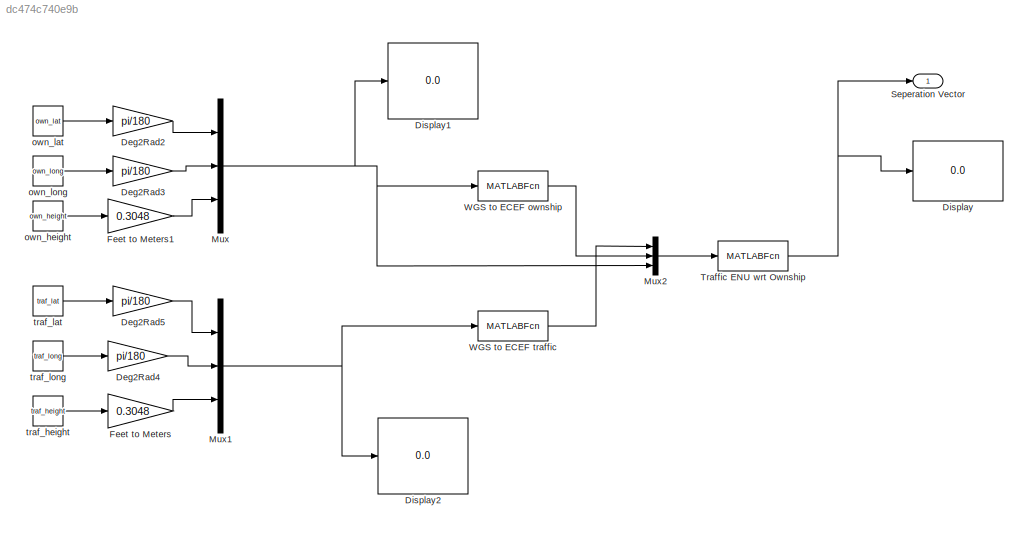
MODEL slx_dc474c740e9b
KIND model
CONFIG AbsTol = auto
CONFIG EnableMultiTasking = off
CONFIG FixedStep = auto
CONFIG MaxStep = auto
CONFIG MinStep = auto
CONFIG RelTol = 1e-3
CONFIG SampleTimeConstraint = Unconstrained
CONFIG Solver = VariableStepAuto
CONFIG SolverName = VariableStepAuto
CONFIG StartTime = 0.0
CONFIG StopTime = 10.0
BLOCK [Gain] Deg2Rad2
  Gain = pi/180
  OutDataTypeStr = Inherit: Inherit via internal rule
  ParamDataTypeStr = Inherit: Inherit via internal rule
  SaturateOnIntegerOverflow = off
BLOCK [Gain] Deg2Rad3
  Gain = pi/180
  OutDataTypeStr = Inherit: Inherit via internal rule
  ParamDataTypeStr = Inherit: Inherit via internal rule
  SaturateOnIntegerOverflow = off
BLOCK [Gain] Deg2Rad4
  Gain = pi/180
  OutDataTypeStr = Inherit: Inherit via internal rule
  ParamDataTypeStr = Inherit: Inherit via internal rule
  SaturateOnIntegerOverflow = off
BLOCK [Gain] Deg2Rad5
  Gain = pi/180
  OutDataTypeStr = Inherit: Inherit via internal rule
  ParamDataTypeStr = Inherit: Inherit via internal rule
  SaturateOnIntegerOverflow = off
BLOCK [Display] Display
  Decimation = 1
  Ports = [1]
BLOCK [Display] Display1
  Decimation = 1
  Ports = [1]
BLOCK [Display] Display2
  Decimation = 1
  Ports = [1]
BLOCK [Gain] Feet to Meters
  Gain = 0.3048
  OutDataTypeStr = Inherit: Inherit via internal rule
  ParamDataTypeStr = Inherit: Inherit via internal rule
  SaturateOnIntegerOverflow = off
BLOCK [Gain] Feet to Meters1
  Gain = 0.3048
  OutDataTypeStr = Inherit: Inherit via internal rule
  ParamDataTypeStr = Inherit: Inherit via internal rule
  SaturateOnIntegerOverflow = off
BLOCK [Mux] Mux
  DisplayOption = bar
  Inputs = 3
  Ports = [3, 1]
BLOCK [Mux] Mux1
  DisplayOption = bar
  Inputs = 3
  Ports = [3, 1]
BLOCK [Mux] Mux2
  DisplayOption = bar
  Inputs = 3
  Ports = [3, 1]
BLOCK [Outport] Seperation Vector
  IconDisplay = Port number
  SignalName = s_out
BLOCK [MATLABFcn] Traffic ENU wrt Ownship
  MATLABFcn = ec2enu
  Ports = [1, 1]
BLOCK [MATLABFcn] WGS to ECEF ownship
  MATLABFcn = wgs_to_ecef
  Ports = [1, 1]
BLOCK [MATLABFcn] WGS to ECEF traffic
  MATLABFcn = wgs_to_ecef
  Ports = [1, 1]
BLOCK [Constant] own_height
  Value = own_height
BLOCK [Constant] own_lat
  Value = own_lat
BLOCK [Constant] own_long
  Value = own_long
BLOCK [Constant] traf_height
  Value = traf_height
BLOCK [Constant] traf_lat
  Value = traf_lat
BLOCK [Constant] traf_long
  Value = traf_long
LINE Deg2Rad2:1 -> Mux:1
LINE Deg2Rad3:1 -> Mux:2
LINE Deg2Rad4:1 -> Mux1:2
LINE Deg2Rad5:1 -> Mux1:1
LINE Feet to Meters1:1 -> Mux:3
LINE Feet to Meters:1 -> Mux1:3
NET Mux1:1 -> Display2:1, WGS to ECEF traffic:1
LINE Mux2:1 -> Traffic ENU wrt Ownship:1
NET Mux:1 -> Display1:1, Mux2:3, WGS to ECEF ownship:1
NET Traffic ENU wrt Ownship:1 -> Display:1, Seperation Vector:1
LINE WGS to ECEF ownship:1 -> Mux2:2
LINE WGS to ECEF traffic:1 -> Mux2:1
LINE own_height:1 -> Feet to Meters1:1
LINE own_lat:1 -> Deg2Rad2:1
LINE own_long:1 -> Deg2Rad3:1
LINE traf_height:1 -> Feet to Meters:1
LINE traf_lat:1 -> Deg2Rad5:1
LINE traf_long:1 -> Deg2Rad4:1
note: NET lines group one-source signal fan-out (src -> all destinations, sorted); 1:1 wires keep LINE
